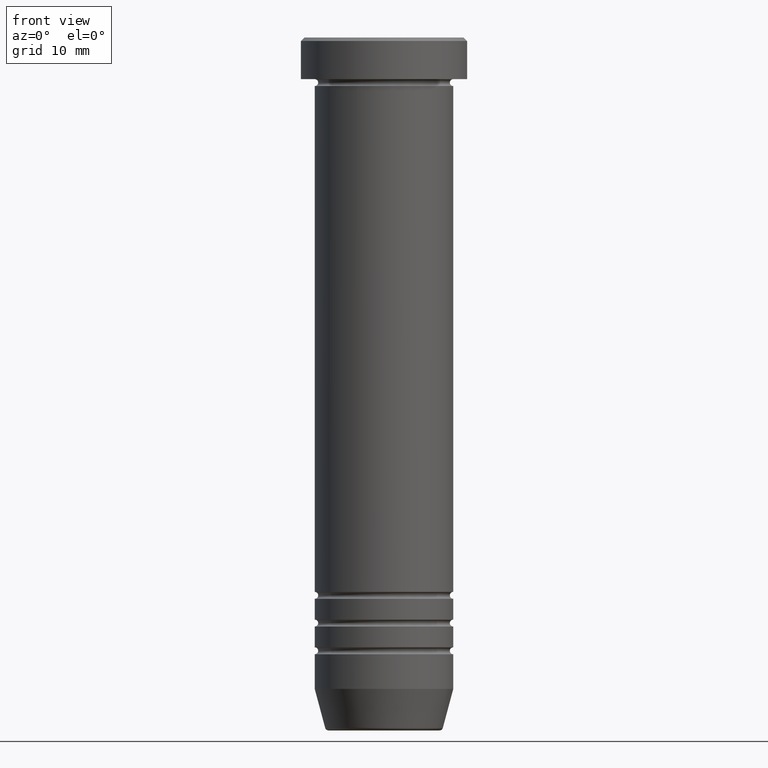
[diagram: clean part render]
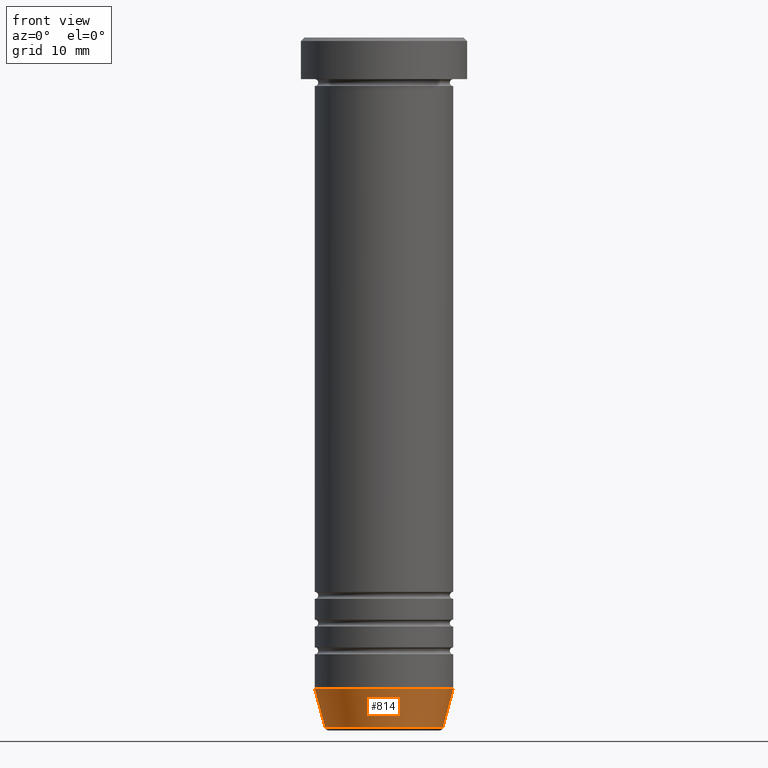
[diagram: same view with one face highlighted and labeled with its STEP entity id]
A machine part, front view. The second image highlights one B-rep face of the part: STEP entity #814.
In plain terms, the highlighted conical surface has half-angle 15 deg.
Its self-contained STEP definition (entity closure, byte-faithful):
#7 = ORIENTED_EDGE ( 'NONE', *, *, #59, .T. ) ;
#59 = EDGE_CURVE ( 'NONE', #75, #478, #295, .T. ) ;
#74 = EDGE_CURVE ( 'NONE', #254, #478, #404, .T. ) ;
#75 = VERTEX_POINT ( 'NONE', #231 ) ;
#84 = AXIS2_PLACEMENT_3D ( 'NONE', #789, #302, #951 ) ;
#121 = ORIENTED_EDGE ( 'NONE', *, *, #74, .F. ) ;
#134 = CARTESIAN_POINT ( 'NONE',  ( 8.392304845413260495, 0.000000000000000000, -99.99999999999998579 ) ) ;
#188 = CONICAL_SURFACE ( 'NONE', #588, 8.392304845413260495, 0.2617993877991502960 ) ;
#213 = CARTESIAN_POINT ( 'NONE',  ( -10.00000000000000000, 1.224646799147353256E-15, -94.00000000000000000 ) ) ;
#231 = CARTESIAN_POINT ( 'NONE',  ( 8.491604264568310967, 0.000000000000000000, -99.62940952255125637 ) ) ;
#254 = VERTEX_POINT ( 'NONE', #213 ) ;
#295 = LINE ( 'NONE', #134, #744 ) ;
#302 = DIRECTION ( 'NONE',  ( -0.000000000000000000, -0.000000000000000000, 1.000000000000000000 ) ) ;
#359 = DIRECTION ( 'NONE',  ( -0.000000000000000000, -0.000000000000000000, 1.000000000000000000 ) ) ;
#404 = CIRCLE ( 'NONE', #84, 10.00000000000000000 ) ;
#425 = VERTEX_POINT ( 'NONE', #632 ) ;
#457 = CIRCLE ( 'NONE', #727, 8.491604264568310967 ) ;
#478 = VERTEX_POINT ( 'NONE', #890 ) ;
#502 = ORIENTED_EDGE ( 'NONE', *, *, #969, .F. ) ;
#511 = CARTESIAN_POINT ( 'NONE',  ( 0.000000000000000000, 0.000000000000000000, -99.99999999999998579 ) ) ;
#545 = DIRECTION ( 'NONE',  ( -0.2588190451025216277, 3.169619151431776035E-17, 0.9659258262890679791 ) ) ;
#588 = AXIS2_PLACEMENT_3D ( 'NONE', #511, #359, #762 ) ;
#597 = DIRECTION ( 'NONE',  ( -0.000000000000000000, -0.000000000000000000, 1.000000000000000000 ) ) ;
#603 = CARTESIAN_POINT ( 'NONE',  ( 0.000000000000000000, 0.000000000000000000, -99.62940952255125637 ) ) ;
#632 = CARTESIAN_POINT ( 'NONE',  ( -8.491604264568310967, 1.132284198685156584E-15, -99.62940952255125637 ) ) ;
#687 = EDGE_LOOP ( 'NONE', ( #502, #948, #7, #121 ) ) ;
#727 = AXIS2_PLACEMENT_3D ( 'NONE', #603, #597, #928 ) ;
#744 = VECTOR ( 'NONE', #960, 1000.000000000000114 ) ;
#762 = DIRECTION ( 'NONE',  ( 1.000000000000000000, 0.000000000000000000, 0.000000000000000000 ) ) ;
#766 = FACE_OUTER_BOUND ( 'NONE', #687, .T. ) ;
#789 = CARTESIAN_POINT ( 'NONE',  ( 0.000000000000000000, 0.000000000000000000, -94.00000000000000000 ) ) ;
#814 = ADVANCED_FACE ( 'NONE', ( #766 ), #188, .T. ) ;
#862 = EDGE_CURVE ( 'NONE', #425, #75, #457, .T. ) ;
#888 = CARTESIAN_POINT ( 'NONE',  ( -8.392304845413260495, 1.027760926640417114E-15, -99.99999999999998579 ) ) ;
#890 = CARTESIAN_POINT ( 'NONE',  ( 10.00000000000000000, 0.000000000000000000, -94.00000000000000000 ) ) ;
#928 = DIRECTION ( 'NONE',  ( -1.000000000000000000, 0.000000000000000000, 0.000000000000000000 ) ) ;
#948 = ORIENTED_EDGE ( 'NONE', *, *, #862, .T. ) ;
#951 = DIRECTION ( 'NONE',  ( 1.000000000000000000, 0.000000000000000000, 0.000000000000000000 ) ) ;
#960 = DIRECTION ( 'NONE',  ( 0.2588190451025216277, 0.000000000000000000, 0.9659258262890679791 ) ) ;
#969 = EDGE_CURVE ( 'NONE', #425, #254, #1030, .T. ) ;
#1006 = VECTOR ( 'NONE', #545, 1000.000000000000114 ) ;
#1030 = LINE ( 'NONE', #888, #1006 ) ;